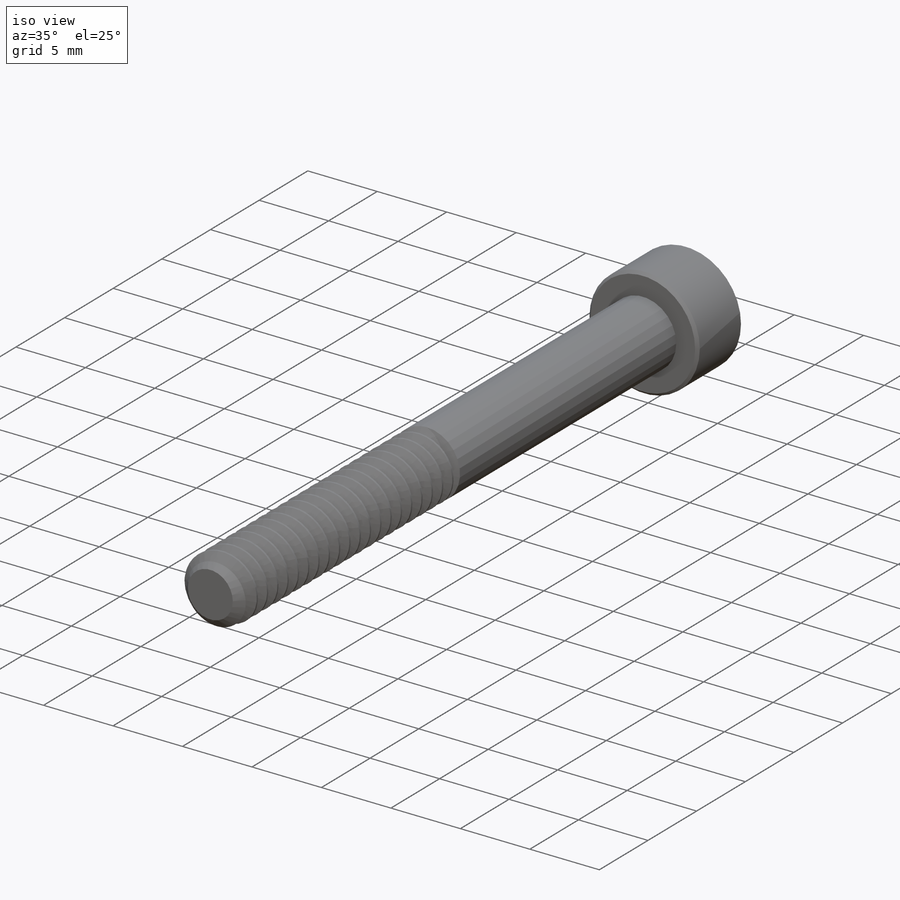
[diagram: iso view]
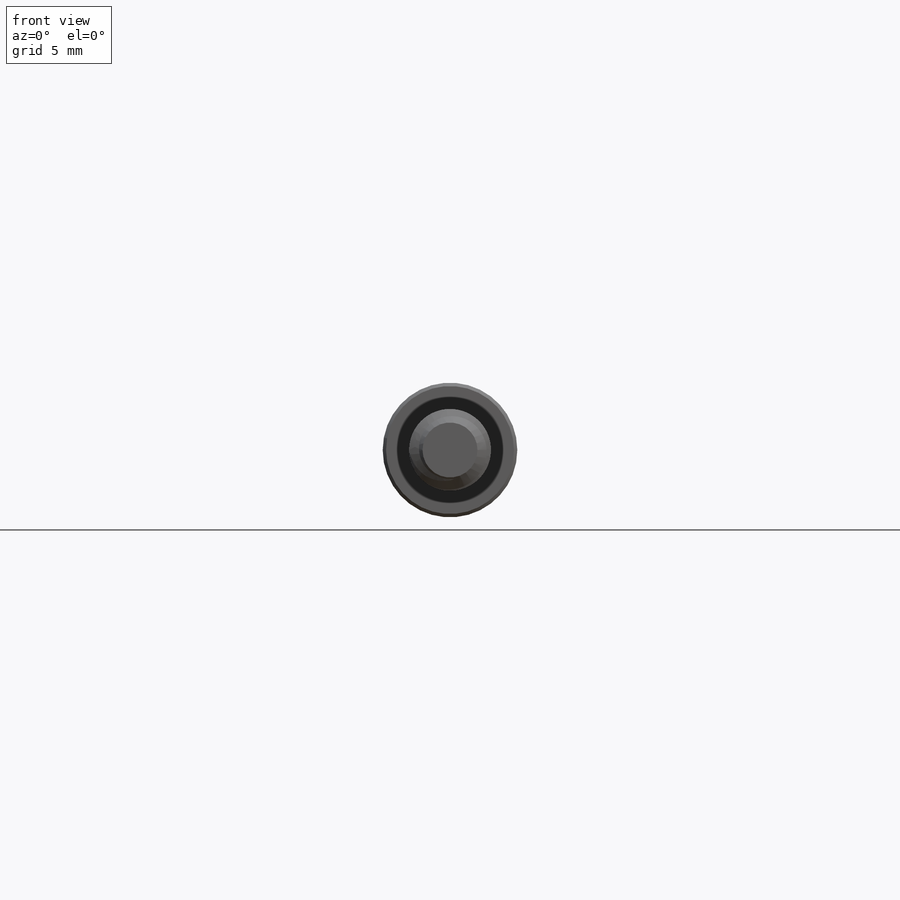
[diagram: front view]
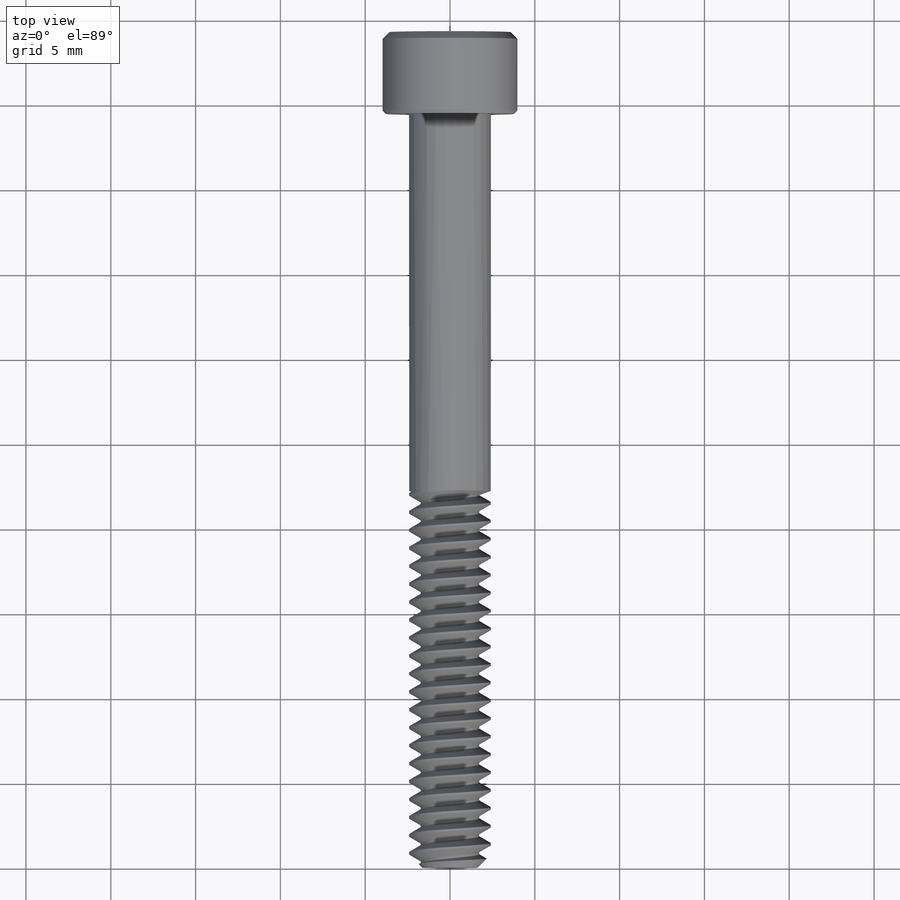
[diagram: top view]
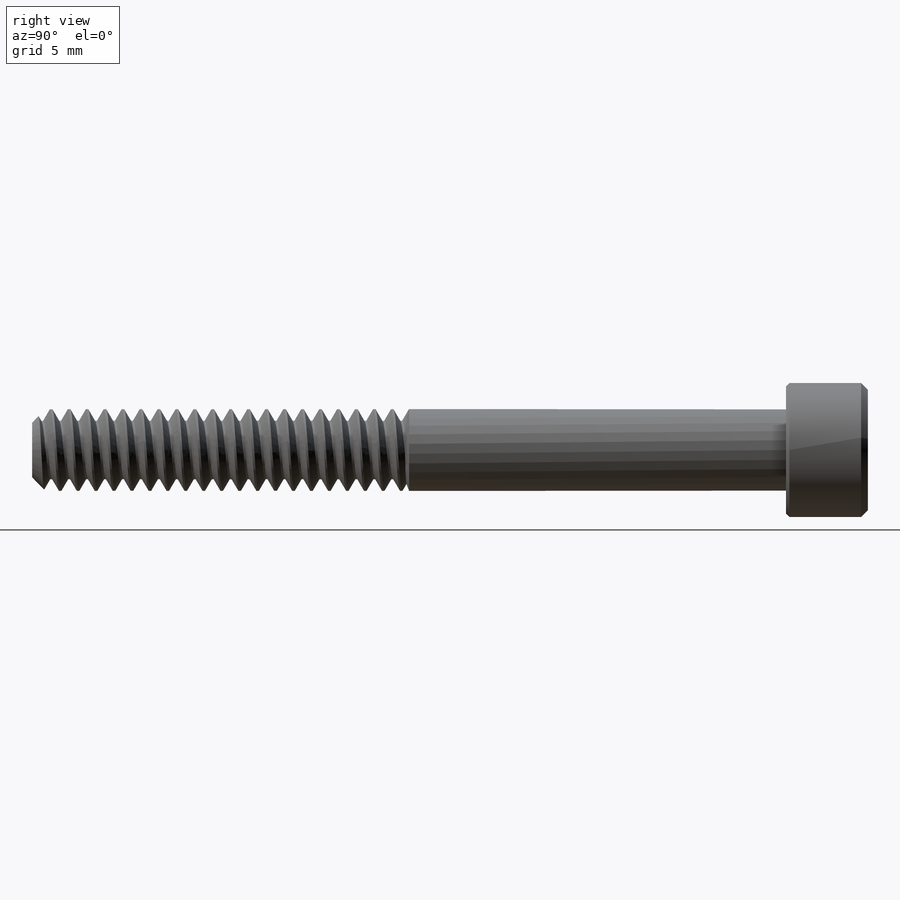
[diagram: right view]
SOLIDWORKS PART (.sldprt)
format: sldprt  version: not decoded by parser v0  size: 1,260,032 bytes
history: native  units: mm
features: sketch x9, chamfer x3, extrude x2, cut_extrude x2, material x1, helix x1, sweep x1, revolve x1 (+15 scaffold rows collapsed)
feature tree (35):
  scaffold x15  (default folders/planes/origin — collapsed)
  material  "AISI 304"
  sketch  "Sketch0"  dims[c1.D1=44.45mm c1.D2=4.826mm c1.Min Thread=12.7mm c2.Min Thread=22.225mm]
  sketch  "Sketch1"  dims[OD=4.826mm]
  extrude  "Extrude1"  Depth=44.45mm screw length=44.45mm
  sketch  "Sketch2"
  helix  "Helix/Spiral1"  Pitch=45.508333mm pitch=1.058333mm
  chamfer  "Chamfer3"  Distance=0.79375mm Angle=45deg
  sketch  "Sketch3"  dims[c1.D1=~0.132292mm c1.D2=~0.529167mm c1.D3=~1.069256mm c2.D3=60.0deg]
  sweep  "Cut-Sweep1"
  sketch  "Sketch5"  dims[c1.Thread min=19.05mm c1.D2=0.635mm c1.D3=0.3302mm c1.D1=0.3302mm c2.D2=0.127mm c2.D3=1.0541mm c3.D3=20.0deg c3.Thread Min=19.05mm c4.Thread Min=19.05mm c4.Min Thread=25.4mm c5.Min Thread=28.575mm c6.Min Thread=38.1mm c7.Min Thread=12.7mm c8.Min Thread=12.7mm c8.D1=~13.573125mm c9.D1=70.0deg c9.D3=2.54mm]
  revolve  "partially thread"  Angle=360deg
  sketch  "Sketch6"  dims[head dia=7.9375mm]
  extrude  "Extrude2"  Depth=4.826mm head depth=4.826mm
  sketch  "Sketch7"  dims[hex dia=~3.96875mm]
  cut_extrude  "Cut-Extrude1"  Depth=2.976562mm
  sketch  "Sketch8"
  cut_extrude  "Cut-Extrude2"  [1 undecoded]
  chamfer  "Chamfer1"  Distance=0.396875mm Angle=45deg
  chamfer  "Chamfer2"  Distance=0.198437mm Angle=45deg
  sketch  "Sketch9"  dims[D1=~2.645833mm]
decode coverage: 15 of 19 modeling features carry decoded parameters
note: ~ marks probable driven/reference dimensions
note: 1 parameter value undecoded
note: suppression state not decoded; provenance and decode notes live in map.json
